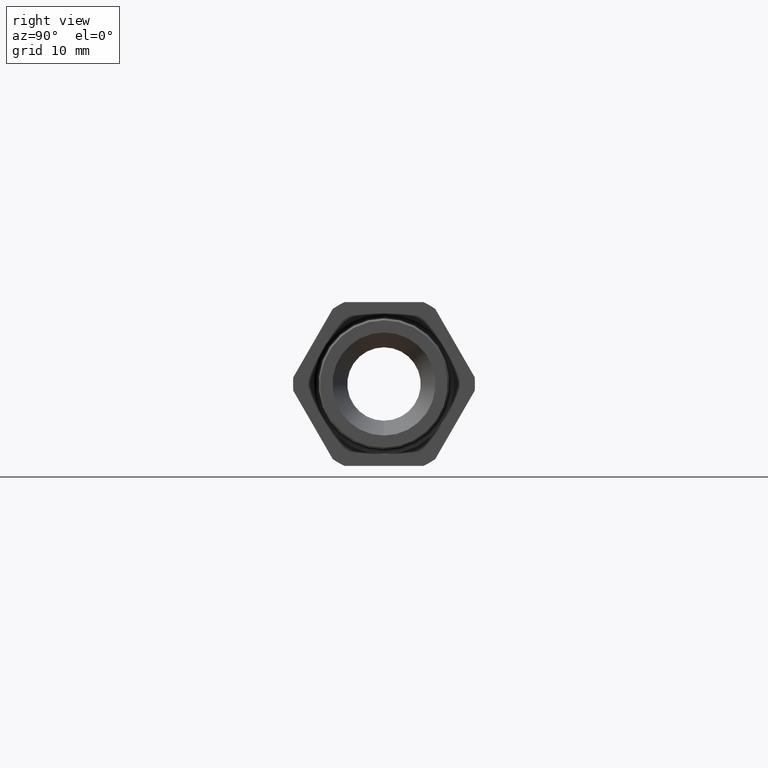
[diagram: clean part render]
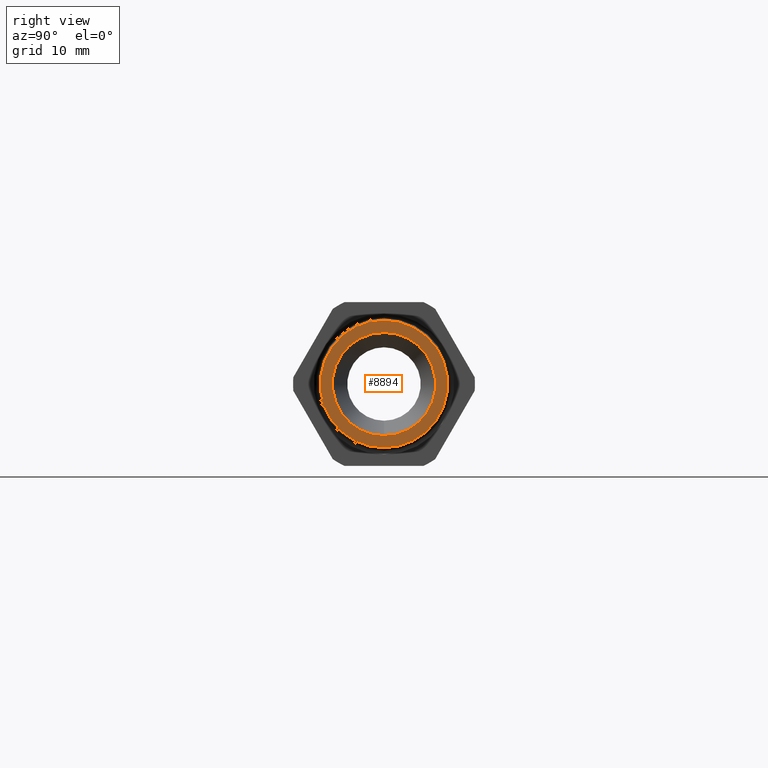
[diagram: same view with one face highlighted and labeled with its STEP entity id]
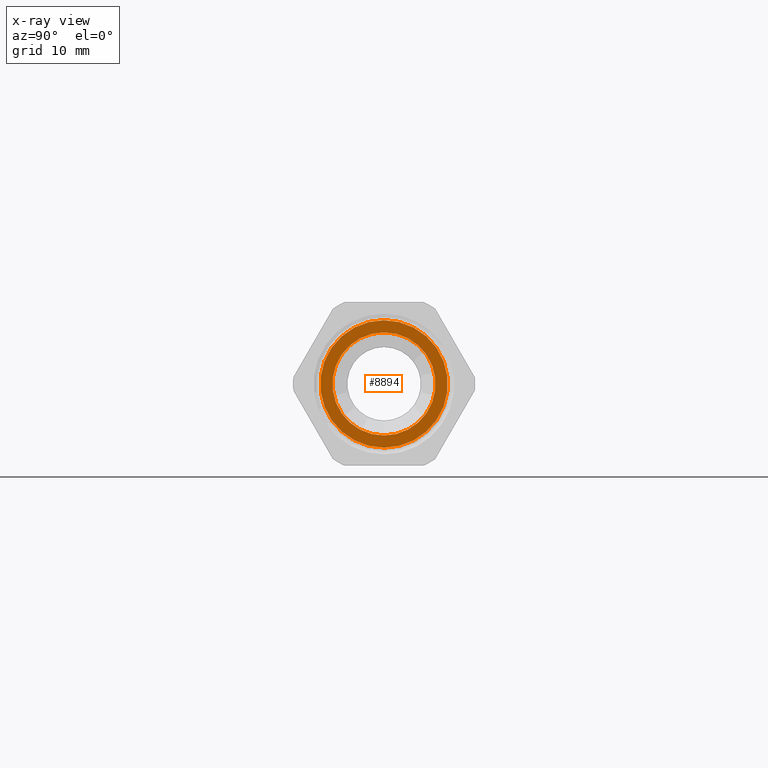
[diagram: x-ray of the same camera — body ghosted, the highlighted face saturated]
A machine part, right view. The second image highlights one B-rep face of the part: STEP entity #8894.
The next image is the same camera in x-ray: the body ghosted, the highlighted face saturated — about 0% of this face is hidden behind the body in this view.
In plain terms, the highlighted planar face has unit normal (1, 0, 0).
Its self-contained STEP definition (entity closure, byte-faithful):
#3451 = CARTESIAN_POINT ( 'NONE',  ( 0.2800000000000000300, 0.0000000000000000000, 0.0000000000000000000 ) ) ;
#3482 = CARTESIAN_POINT ( 'NONE',  ( 0.2800000000000000300, 0.0000000000000000000, -0.2737499999999999900 ) ) ;
#3483 = DIRECTION ( 'NONE',  ( 0.0000000000000000000, 0.0000000000000000000, -1.000000000000000000 ) ) ;
#3484 = DIRECTION ( 'NONE',  ( 1.000000000000000000, 0.0000000000000000000, 0.0000000000000000000 ) ) ;
#3485 = CARTESIAN_POINT ( 'NONE',  ( 0.2800000000000000300, 0.0000000000000000000, 0.0000000000000000000 ) ) ;
#3486 = AXIS2_PLACEMENT_3D ( 'NONE', #3485, #3484, #3483 ) ;
#3487 = CIRCLE ( 'NONE', #3486, 0.2737499999999999900 ) ;
#3488 = CARTESIAN_POINT ( 'NONE',  ( 0.2800000000000000300, 3.352470612665879700E-017, 0.2737499999999999900 ) ) ;
#3503 = CARTESIAN_POINT ( 'NONE',  ( 0.2800000000000000300, 0.0000000000000000000, 0.3383212882532583600 ) ) ;
#3504 = CARTESIAN_POINT ( 'NONE',  ( 0.2800000000000000300, 4.143643949854320600E-017, -0.3383212882532583600 ) ) ;
#3505 = DIRECTION ( 'NONE',  ( 0.0000000000000000000, 0.0000000000000000000, -1.000000000000000000 ) ) ;
#3506 = DIRECTION ( 'NONE',  ( 1.000000000000000000, 0.0000000000000000000, 0.0000000000000000000 ) ) ;
#3507 = AXIS2_PLACEMENT_3D ( 'NONE', #3451, #3506, #3505 ) ;
#3508 = CIRCLE ( 'NONE', #3507, 0.3383212882532583600 ) ;
#7456 = DIRECTION ( 'NONE',  ( 0.0000000000000000000, 0.0000000000000000000, -1.000000000000000000 ) ) ;
#7457 = DIRECTION ( 'NONE',  ( 1.000000000000000000, 0.0000000000000000000, 0.0000000000000000000 ) ) ;
#7458 = CARTESIAN_POINT ( 'NONE',  ( 0.2800000000000000300, 0.2737499999999999900, 0.0000000000000000000 ) ) ;
#7459 = AXIS2_PLACEMENT_3D ( 'NONE', #7458, #7457, #7456 ) ;
#7460 = PLANE ( 'NONE',  #7459 ) ;
#7461 = FACE_BOUND ( 'NONE', #8954, .T. ) ;
#7462 = FACE_OUTER_BOUND ( 'NONE', #8895, .T. ) ;
#7463 = DIRECTION ( 'NONE',  ( 0.0000000000000000000, 0.0000000000000000000, -1.000000000000000000 ) ) ;
#7464 = DIRECTION ( 'NONE',  ( 1.000000000000000000, 0.0000000000000000000, 0.0000000000000000000 ) ) ;
#7465 = AXIS2_PLACEMENT_3D ( 'NONE', #7471, #7464, #7463 ) ;
#7466 = CIRCLE ( 'NONE', #7465, 0.2737499999999999900 ) ;
#7471 = CARTESIAN_POINT ( 'NONE',  ( 0.2800000000000000300, 0.0000000000000000000, 0.0000000000000000000 ) ) ;
#7478 = DIRECTION ( 'NONE',  ( 0.0000000000000000000, 0.0000000000000000000, -1.000000000000000000 ) ) ;
#7479 = DIRECTION ( 'NONE',  ( 1.000000000000000000, 0.0000000000000000000, 0.0000000000000000000 ) ) ;
#7480 = AXIS2_PLACEMENT_3D ( 'NONE', #7486, #7479, #7478 ) ;
#7481 = CIRCLE ( 'NONE', #7480, 0.3383212882532583600 ) ;
#7486 = CARTESIAN_POINT ( 'NONE',  ( 0.2800000000000000300, 0.0000000000000000000, 0.0000000000000000000 ) ) ;
#8893 = EDGE_CURVE ( 'NONE', #9408, #9405, #7466, .T. ) ;
#8894 = ADVANCED_FACE ( 'NONE', ( #7462, #7461 ), #7460, .T. ) ;
#8895 = EDGE_LOOP ( 'NONE', ( #8952, #8953 ) ) ;
#8918 = EDGE_CURVE ( 'NONE', #9398, #9397, #7481, .T. ) ;
#8952 = ORIENTED_EDGE ( 'NONE', *, *, #8918, .T. ) ;
#8953 = ORIENTED_EDGE ( 'NONE', *, *, #9396, .T. ) ;
#8954 = EDGE_LOOP ( 'NONE', ( #8955, #8956 ) ) ;
#8955 = ORIENTED_EDGE ( 'NONE', *, *, #8893, .F. ) ;
#8956 = ORIENTED_EDGE ( 'NONE', *, *, #9407, .F. ) ;
#9396 = EDGE_CURVE ( 'NONE', #9397, #9398, #3508, .T. ) ;
#9397 = VERTEX_POINT ( 'NONE', #3504 ) ;
#9398 = VERTEX_POINT ( 'NONE', #3503 ) ;
#9405 = VERTEX_POINT ( 'NONE', #3488 ) ;
#9407 = EDGE_CURVE ( 'NONE', #9405, #9408, #3487, .T. ) ;
#9408 = VERTEX_POINT ( 'NONE', #3482 ) ;